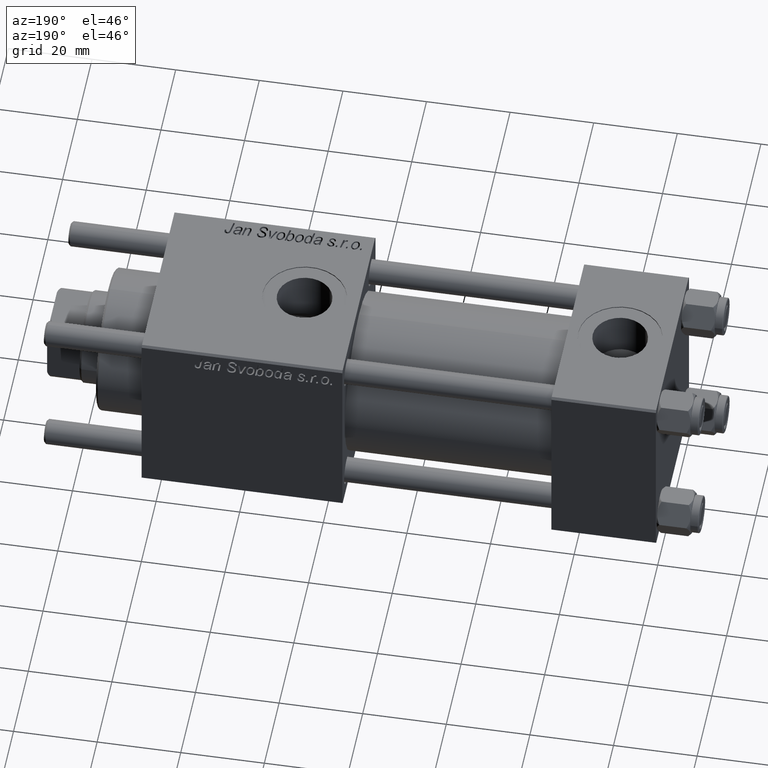
[diagram: clean part render]
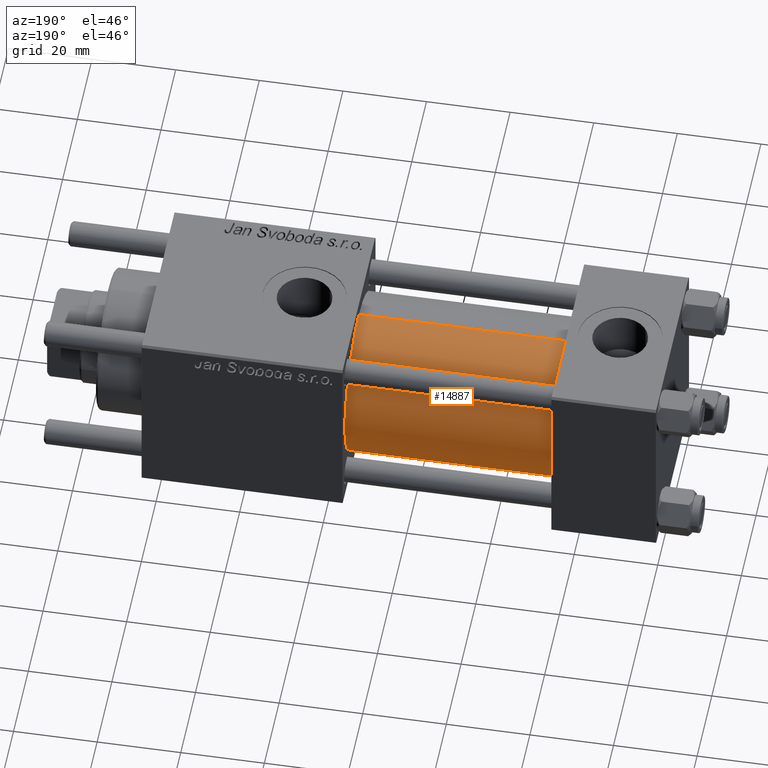
[diagram: same view with one face highlighted and labeled with its STEP entity id]
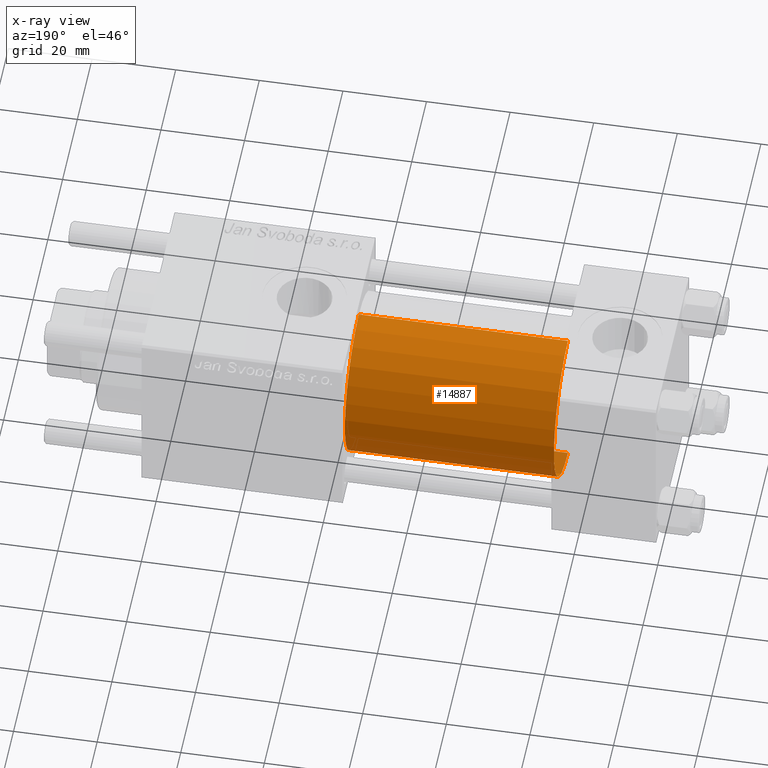
[diagram: x-ray of the same camera — body ghosted, the highlighted face saturated]
A machine part, auxiliary view. The second image highlights one B-rep face of the part: STEP entity #14887.
The next image is the same camera in x-ray: the body ghosted, the highlighted face saturated — about 1% of this face is hidden behind the body in this view.
In plain terms, the highlighted cylindrical surface (partial cylindrical patch) has radius 19 mm, axis along (-1, -0, -0).
Its self-contained STEP definition (entity closure, byte-faithful):
#138 = CARTESIAN_POINT ( 'NONE',  ( 25.00000000000000000, -2.602085213965210642E-15, 0.000000000000000000 ) ) ;
#384 = VECTOR ( 'NONE', #38081, 1000.000000000000000 ) ;
#1679 = AXIS2_PLACEMENT_3D ( 'NONE', #18447, #54734, #45817 ) ;
#2385 = EDGE_LOOP ( 'NONE', ( #52677, #52756, #32199, #56754 ) ) ;
#3251 = EDGE_CURVE ( 'NONE', #27130, #32746, #9998, .T. ) ;
#3682 = CARTESIAN_POINT ( 'NONE',  ( 75.00000000000001421, -2.752562955852396712E-16, -19.00000000000000000 ) ) ;
#4555 = CIRCLE ( 'NONE', #1679, 19.00000000000000000 ) ;
#9998 = CIRCLE ( 'NONE', #19531, 19.00000000000000000 ) ;
#11189 = LINE ( 'NONE', #19834, #39216 ) ;
#13260 = DIRECTION ( 'NONE',  ( 0.000000000000000000, 0.000000000000000000, 1.000000000000000000 ) ) ;
#14887 = ADVANCED_FACE ( 'NONE', ( #30240 ), #53449, .T. ) ;
#16082 = VERTEX_POINT ( 'NONE', #3682 ) ;
#18447 = CARTESIAN_POINT ( 'NONE',  ( 75.00000000000001421, -2.602085213965210642E-15, 0.000000000000000000 ) ) ;
#19531 = AXIS2_PLACEMENT_3D ( 'NONE', #138, #54025, #13260 ) ;
#19552 = VERTEX_POINT ( 'NONE', #55630 ) ;
#19834 = CARTESIAN_POINT ( 'NONE',  ( 75.00000000000001421, -2.602085213965210642E-15, 19.00000000000000000 ) ) ;
#19946 = CARTESIAN_POINT ( 'NONE',  ( 75.00000000000001421, -2.752562955852396712E-16, -19.00000000000000000 ) ) ;
#21913 = DIRECTION ( 'NONE',  ( -1.000000000000000000, -0.000000000000000000, -0.000000000000000000 ) ) ;
#27130 = VERTEX_POINT ( 'NONE', #56422 ) ;
#29150 = EDGE_CURVE ( 'NONE', #19552, #32746, #11189, .T. ) ;
#30240 = FACE_OUTER_BOUND ( 'NONE', #2385, .T. ) ;
#32038 = CARTESIAN_POINT ( 'NONE',  ( 25.00000000000000000, -2.602085213965210642E-15, 19.00000000000000000 ) ) ;
#32199 = ORIENTED_EDGE ( 'NONE', *, *, #3251, .T. ) ;
#32746 = VERTEX_POINT ( 'NONE', #32038 ) ;
#34415 = CARTESIAN_POINT ( 'NONE',  ( 75.00000000000001421, -2.602085213965210642E-15, 0.000000000000000000 ) ) ;
#37970 = DIRECTION ( 'NONE',  ( -1.000000000000000000, -0.000000000000000000, -0.000000000000000000 ) ) ;
#38081 = DIRECTION ( 'NONE',  ( -1.000000000000000000, -0.000000000000000000, -0.000000000000000000 ) ) ;
#39216 = VECTOR ( 'NONE', #37970, 1000.000000000000000 ) ;
#40201 = EDGE_CURVE ( 'NONE', #16082, #27130, #56506, .T. ) ;
#44522 = DIRECTION ( 'NONE',  ( 0.000000000000000000, 0.000000000000000000, 1.000000000000000000 ) ) ;
#45817 = DIRECTION ( 'NONE',  ( 0.000000000000000000, 0.000000000000000000, -1.000000000000000000 ) ) ;
#52677 = ORIENTED_EDGE ( 'NONE', *, *, #55600, .F. ) ;
#52756 = ORIENTED_EDGE ( 'NONE', *, *, #40201, .T. ) ;
#53449 = CYLINDRICAL_SURFACE ( 'NONE', #58695, 19.00000000000000000 ) ;
#54025 = DIRECTION ( 'NONE',  ( 1.000000000000000000, -0.000000000000000000, 0.000000000000000000 ) ) ;
#54734 = DIRECTION ( 'NONE',  ( 1.000000000000000000, 0.000000000000000000, 0.000000000000000000 ) ) ;
#55600 = EDGE_CURVE ( 'NONE', #16082, #19552, #4555, .T. ) ;
#55630 = CARTESIAN_POINT ( 'NONE',  ( 75.00000000000001421, -2.602085213965210642E-15, 19.00000000000000000 ) ) ;
#56422 = CARTESIAN_POINT ( 'NONE',  ( 25.00000000000000000, -2.752562955852396712E-16, -19.00000000000000000 ) ) ;
#56506 = LINE ( 'NONE', #19946, #384 ) ;
#56754 = ORIENTED_EDGE ( 'NONE', *, *, #29150, .F. ) ;
#58695 = AXIS2_PLACEMENT_3D ( 'NONE', #34415, #21913, #44522 ) ;